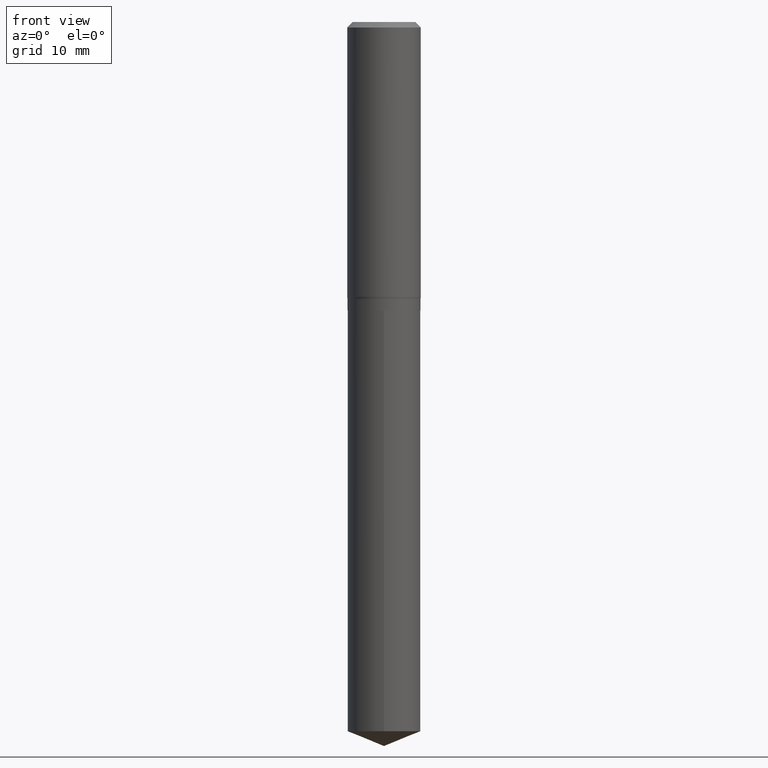
[diagram: clean part render]
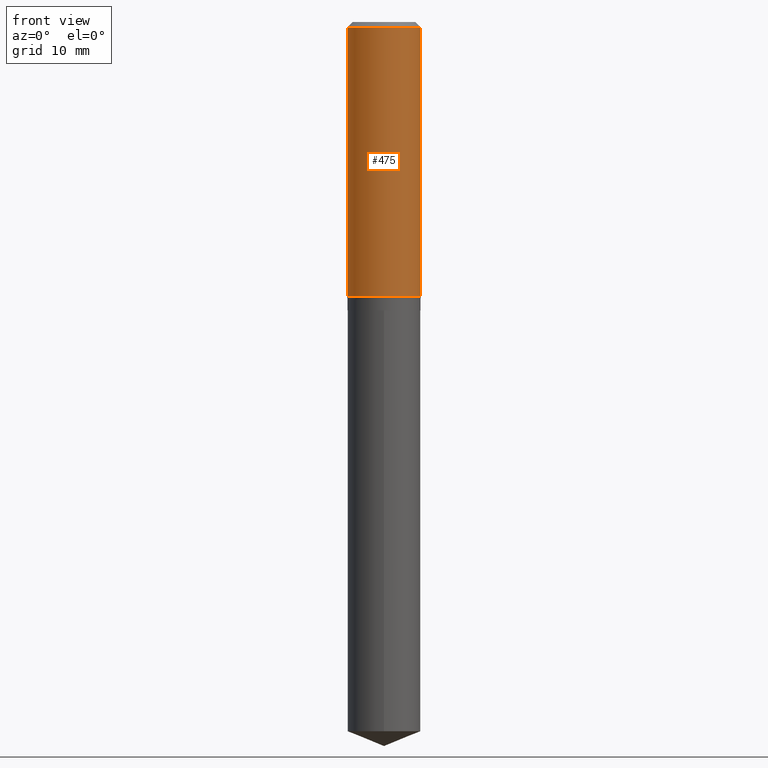
[diagram: same view with one face highlighted and labeled with its STEP entity id]
A machine part, front view. The second image highlights one B-rep face of the part: STEP entity #475.
In plain terms, the highlighted cylindrical surface (partial cylindrical patch) has radius 5.9995 mm, axis along (-0, 0, 1).
Its self-contained STEP definition (entity closure, byte-faithful):
#20 = ORIENTED_EDGE ( 'NONE', *, *, #48, .T. ) ;
#23 = CARTESIAN_POINT ( 'NONE',  ( -0.2362000000000002153, -4.479762893647714438E-15, -1.763739867947701212 ) ) ;
#26 = LINE ( 'NONE', #64, #359 ) ;
#30 = AXIS2_PLACEMENT_3D ( 'NONE', #169, #138, #440 ) ;
#40 = AXIS2_PLACEMENT_3D ( 'NONE', #191, #416, #452 ) ;
#46 = ORIENTED_EDGE ( 'NONE', *, *, #158, .T. ) ;
#48 = EDGE_CURVE ( 'NONE', #223, #316, #26, .T. ) ;
#57 = CARTESIAN_POINT ( 'NONE',  ( 0.2361999999999999933, -1.773078968304709514E-15, -0.03543000000000021826 ) ) ;
#64 = CARTESIAN_POINT ( 'NONE',  ( 0.2362000000000001043, -1.649375784469496920E-15, 1.151752954443000508E-29 ) ) ;
#97 = EDGE_CURVE ( 'NONE', #481, #142, #484, .T. ) ;
#106 = EDGE_CURVE ( 'NONE', #142, #316, #126, .T. ) ;
#114 = CARTESIAN_POINT ( 'NONE',  ( -0.2361999999999999933, -1.462582067808785220E-15, -0.03543000000000021826 ) ) ;
#122 = ORIENTED_EDGE ( 'NONE', *, *, #106, .F. ) ;
#126 = CIRCLE ( 'NONE', #314, 0.2361999999999999933 ) ;
#138 = DIRECTION ( 'NONE',  ( -2.445468806185136597E-29, 3.491481338843145583E-15, 1.000000000000000000 ) ) ;
#142 = VERTEX_POINT ( 'NONE', #114 ) ;
#143 = VECTOR ( 'NONE', #371, 39.37007874015748143 ) ;
#146 = DIRECTION ( 'NONE',  ( 1.000000000000000000, -6.982962677686266711E-15, 0.000000000000000000 ) ) ;
#158 = EDGE_CURVE ( 'NONE', #481, #223, #399, .T. ) ;
#169 = CARTESIAN_POINT ( 'NONE',  ( 0.000000000000000000, 0.000000000000000000, 0.000000000000000000 ) ) ;
#191 = CARTESIAN_POINT ( 'NONE',  ( 4.313170829291195543E-29, -6.158064835513072410E-15, -1.763739867947701212 ) ) ;
#205 = EDGE_LOOP ( 'NONE', ( #361, #46, #20, #122 ) ) ;
#223 = VERTEX_POINT ( 'NONE', #418 ) ;
#226 = CARTESIAN_POINT ( 'NONE',  ( -0.2362000000000001043, 1.678301941865357380E-15, -1.161852468318209317E-29 ) ) ;
#257 = FACE_OUTER_BOUND ( 'NONE', #205, .T. ) ;
#269 = CARTESIAN_POINT ( 'NONE',  ( 8.664295980313991736E-31, -1.237031838352134079E-16, -0.03543000000000021826 ) ) ;
#314 = AXIS2_PLACEMENT_3D ( 'NONE', #269, #380, #146 ) ;
#316 = VERTEX_POINT ( 'NONE', #57 ) ;
#335 = DIRECTION ( 'NONE',  ( -2.445468806185136877E-29, 3.491481338843145188E-15, 1.000000000000000000 ) ) ;
#359 = VECTOR ( 'NONE', #335, 39.37007874015748143 ) ;
#361 = ORIENTED_EDGE ( 'NONE', *, *, #97, .F. ) ;
#371 = DIRECTION ( 'NONE',  ( -2.445468806185136877E-29, 3.491481338843145188E-15, 1.000000000000000000 ) ) ;
#380 = DIRECTION ( 'NONE',  ( -2.445468806185136597E-29, 3.491481338843145583E-15, 1.000000000000000000 ) ) ;
#399 = CIRCLE ( 'NONE', #40, 0.2362000000000002153 ) ;
#403 = CYLINDRICAL_SURFACE ( 'NONE', #30, 0.2362000000000001043 ) ;
#416 = DIRECTION ( 'NONE',  ( -2.445468806185136597E-29, 3.491481338843145583E-15, 1.000000000000000000 ) ) ;
#418 = CARTESIAN_POINT ( 'NONE',  ( 0.2362000000000002153, -7.807440619982569724E-15, -1.763739867947701212 ) ) ;
#440 = DIRECTION ( 'NONE',  ( 1.000000000000000000, -6.982962677686266711E-15, 4.876176775795935793E-29 ) ) ;
#452 = DIRECTION ( 'NONE',  ( 1.000000000000000000, -6.982962677686266711E-15, 0.000000000000000000 ) ) ;
#475 = ADVANCED_FACE ( 'NONE', ( #257 ), #403, .T. ) ;
#481 = VERTEX_POINT ( 'NONE', #23 ) ;
#484 = LINE ( 'NONE', #226, #143 ) ;